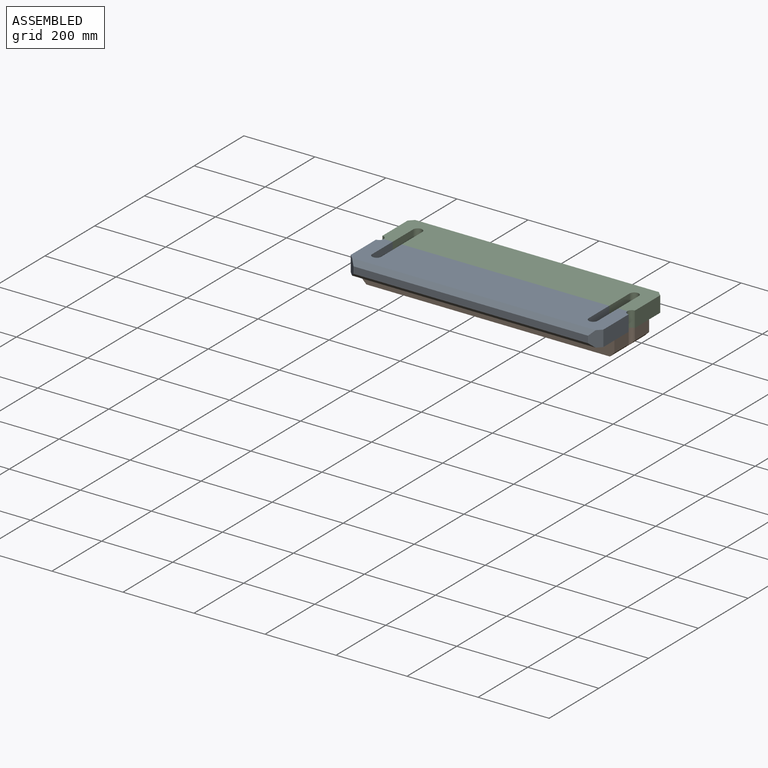
[diagram: assembled view]
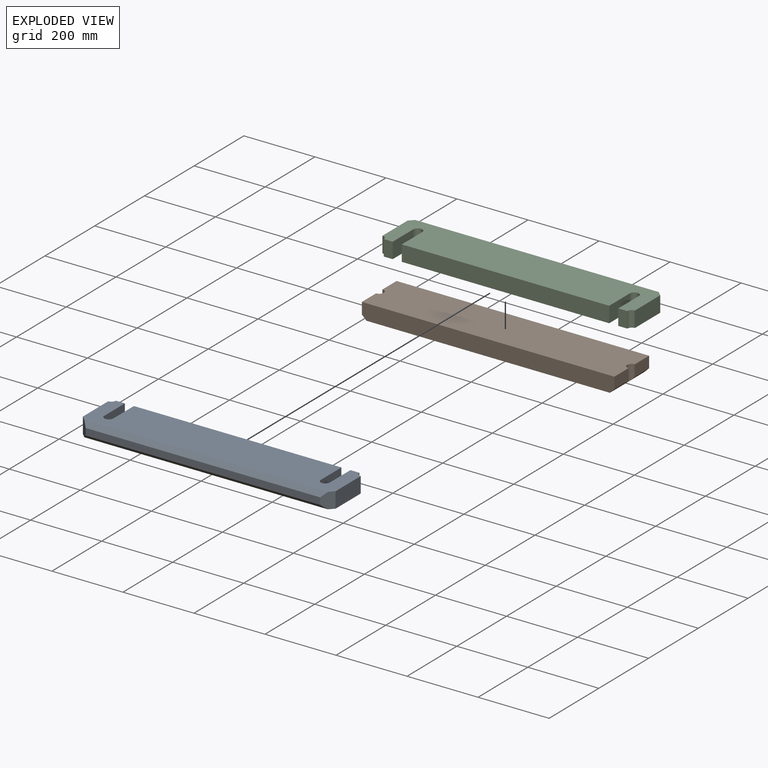
[diagram: exploded view]
GUIDED TOUR — MATED ASSEMBLY (Onshape document 4e13395bb980e09be525215f, AutoMate assembly 4e13395bb980e09be525215f_2cf490e79bdf5e7aecb7dca5_37e0e75ca202d9d71de66ae4_default)

This assembly has 3 components, labeled P0..P2 below (a component is one placed occurrence of a part; the same part can appear more than once), held together by 2 mates. A mate is a constraint between two components; its type names the relative motion it leaves free:
  FASTENED — locks the two components together rigidly (no relative motion).
Axis/direction vectors are unit vectors and 'through' points are millimeter coordinates, both in the assembly's world frame.

MATES
  1. FASTENED "Fastened 2": P1 <-> P0, direction (0.000, -1.000, 0.000) through (367.36, 115.08, -18.52) mm
  2. FASTENED "Fastened 1": P2 <-> P1, direction (0.000, -1.000, 0.000) through (367.36, 184.93, -18.52) mm

ASSEMBLY ORDER
  1. P2 — the base component [order verified]
  2. P1 [order verified]
  3. P0 [order verified]
Order-tag legend:
  [order verified] — this step's position reverses a verified removal order: the component was checked to insert without passing through the ones already placed.

Of the 3 components, 3 carry the full construction recipe — the FeatureScript program that regenerates the part's solid from scratch; the rest are supplied as boundary geometry only.
Each toured component is shown spotlighted twice — in the assembled view, then in the exploded view, where a leader line traces a displaced component back to its assembled socket (saturated green if recipe-attached, orange if geometry-only; every other component desaturated gray) — followed by its recipe or geometry summary and the mates that hold it.
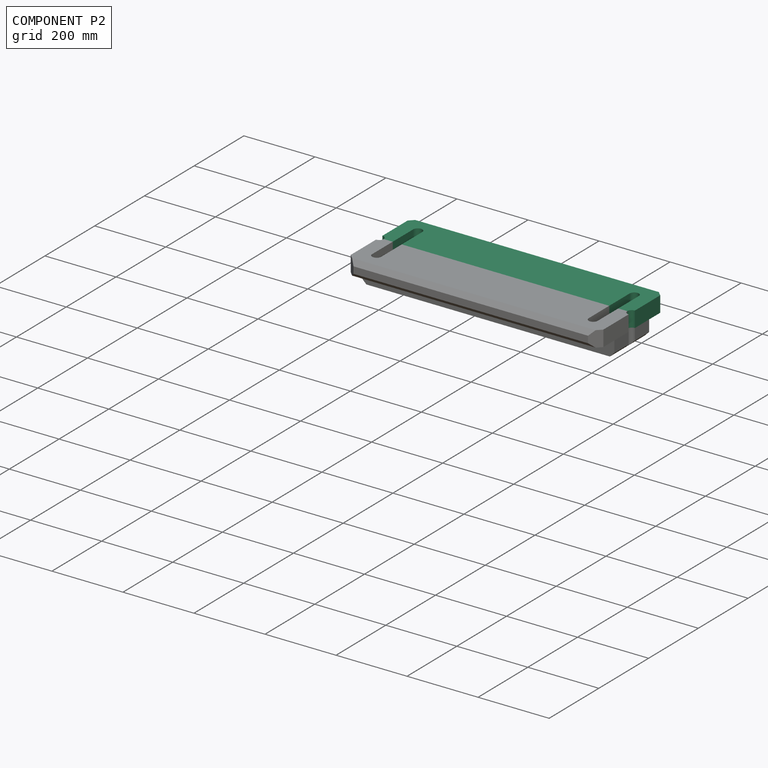
[diagram: component P2 — assembled]
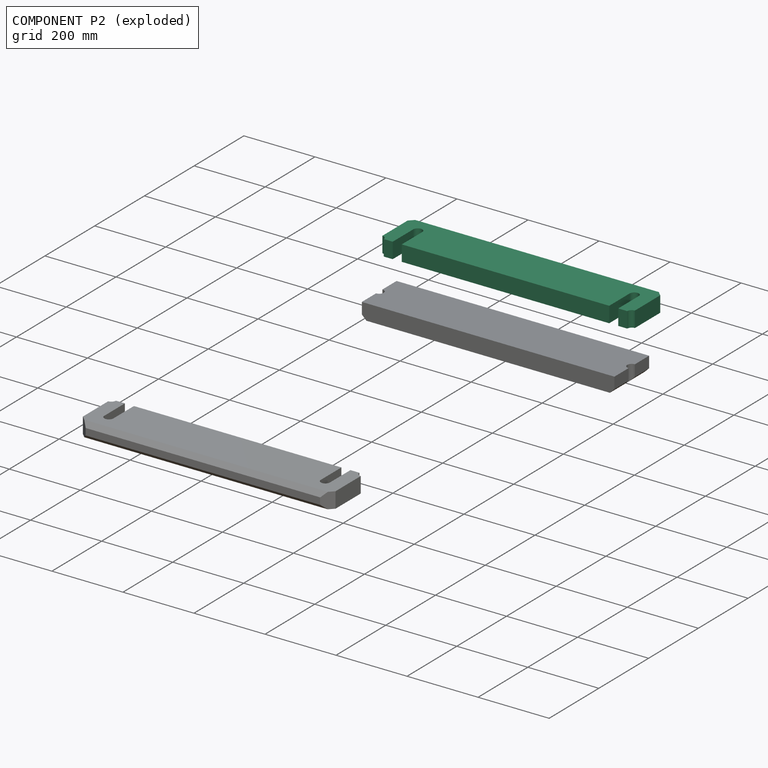
[diagram: component P2 — exploded]
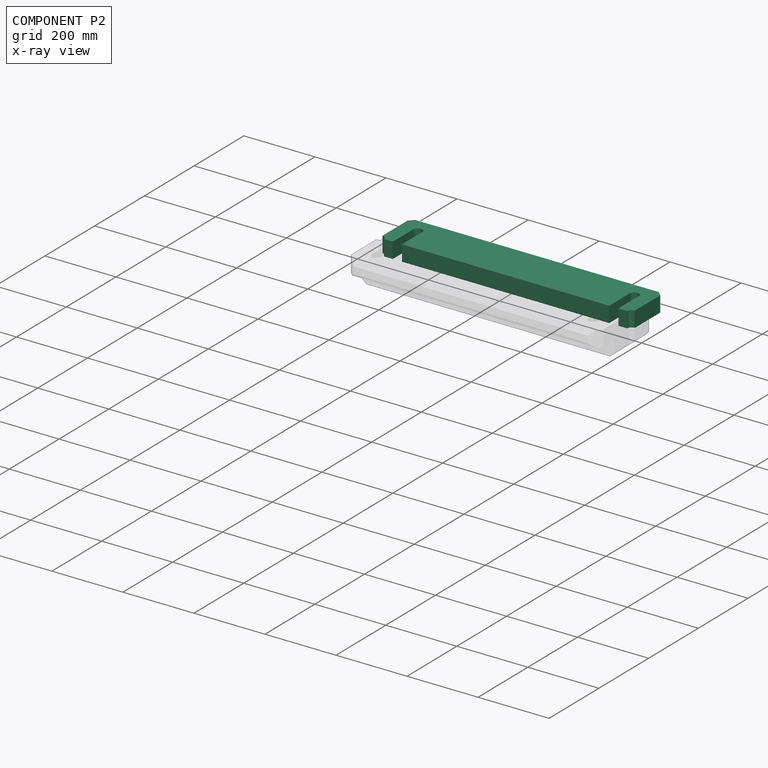
[diagram: component P2 — x-ray view]
COMPONENT P2 — same part as P0 (CADFS 00534415); its construction recipe is shown at P0.
Held by: FASTENED mate "Fastened 1" to P1.
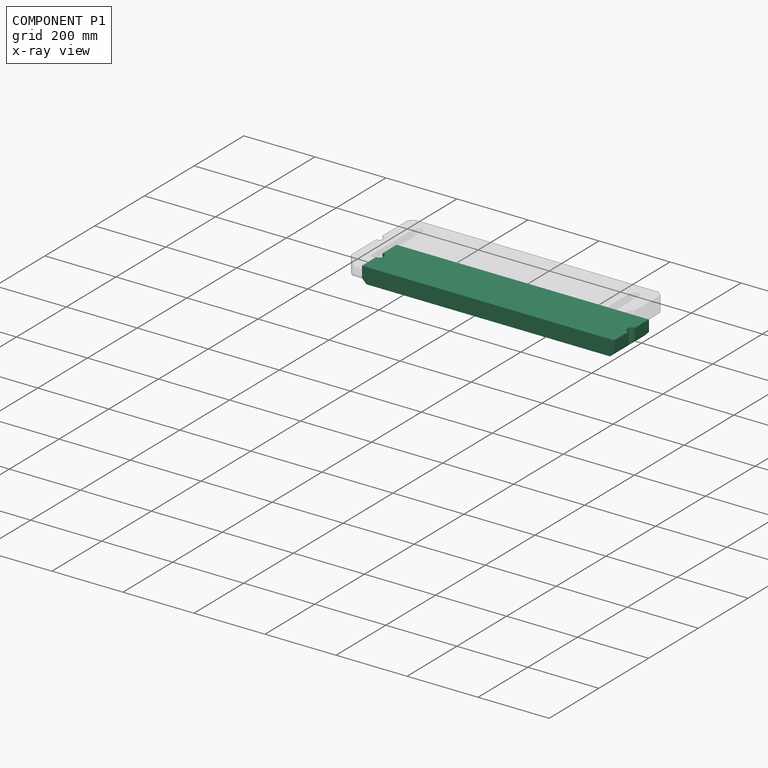
[diagram: component P1 — x-ray view]
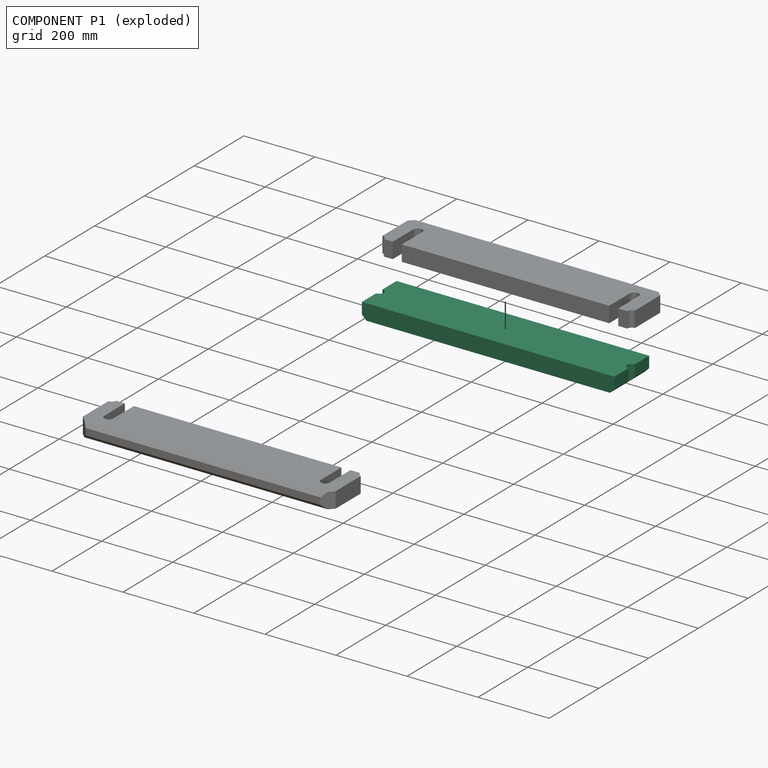
[diagram: component P1 — exploded]
COMPONENT P1 — recipe-attached (CADFS 00534414, mesh-verified: the recipe's output STEP matches this component's geometry to below the mesh-comparison resolution (tessellation chordal tolerance ~1.09 mm)).
Held by: FASTENED mate "Fastened 2" to P0; FASTENED mate "Fastened 1" to P2.
Construction recipe (FeatureScript — the CAD program that rebuilds this solid; sketch coordinates are in the units given by the * unit suffixes, e.g. mm):

FeatureScript 1511;
import(path : "onshape/std/geometry.fs", version : "1511.0");
import(path : "onshape/std/common.fs", version : "1511.0");
const mm = millimeter;
const VERTEX = EntityType.VERTEX;
const EDGE = EntityType.EDGE;
const FACE = EntityType.FACE;
const BODY = EntityType.BODY;
function v(x, y){return vector(x, y);}
function OD(order){return orderDisambiguation(order);}
function OSD(set){return originalSetDisambiguation(set);}
function TD(topology){return topologyDisambiguation(topology);}
function TDD(query){return trueDependencyDisambiguation(query);}
function sQuery(a, b, c) {return sketchEntityQuery(a, b, c);}

annotation { "Feature Type Name" : "Feature", "Feature Type Description" : "" }
export const myFeature = defineFeature(function(context is Context, id is Id, definition is map)
    precondition{}
    {
        {
            var Q0;
            Q0=qCreatedBy(makeId("Top.planeOp"),FACE);
            var sketch = newSketch(context, id + "F0", { "sketchPlane" : qUnion([Q0])});
            skLineSegment(sketch, "E0.bottom", {"start": v(0, 0) * mm, "end": v(711.2, 0) * mm});
            skLineSegment(sketch, "E0.top", {"start": v(0, 139.7) * mm, "end": v(711.2, 139.7) * mm});
            skLineSegment(sketch, "E0.left", {"start": v(0, 0) * mm, "end": v(0, 139.7) * mm});
            skLineSegment(sketch, "E0.right", {"start": v(711.2, 0) * mm, "end": v(711.2, 139.7) * mm});
            skSolve(sketch);
        }
        {
            var Q0;
            Q0 = qSketchRegion(id + "F0", true);
            extrude(context, id + "F1", {"entities" : qUnion([Q0]), "depth" : 44.45 * mm, "offsetDistance" : 25.4 * mm});
        }
        {
            var Q0;
            Q0=makeQuery(id+"F1.opExtrude","CAP_EDGE",EDGE,{"disambiguationData":[OSD([sQuery(id+"F0.wireOp",EDGE,"E0.left")])],"isStart":true});
            var Q1;
            Q1=makeQuery(id+"F1.opExtrude","CAP_EDGE",EDGE,{"disambiguationData":[OSD([sQuery(id+"F0.wireOp",EDGE,"E0.right")])],"isStart":true});
            chamfer(context, id + "F2", {"entities" : qUnion([Q0, Q1]), "width" : 12.7 * mm, "tangentPropagation" : true});
        }
        {
            var Q0;
            Q0=makeQuery(id+"F1.opExtrude","CAP_FACE",FACE,{"disambiguationData":[OSD([sQuery(id+"F0.wireOp",EDGE,"E0.bottom"),sQuery(id+"F0.wireOp",EDGE,"E0.top"),sQuery(id+"F0.wireOp",EDGE,"E0.left"),sQuery(id+"F0.wireOp",EDGE,"E0.right")])],"isStart":false});
            var sketch = newSketch(context, id + "F3", { "sketchPlane" : qUnion([Q0])});
            skLineSegment(sketch, "E1", {"start": v(355.6, 153.84) * mm, "end": v(355.6, -32.66) * mm, "construction": true});
            skPoint(sketch, "E1.startSnap0", {"position": v(355.6, 139.7) * mm});
            skLineSegment(sketch, "E2", {"start": v(-32.44, 69.85) * mm, "end": v(724.16, 69.85) * mm, "construction": true});
            skPoint(sketch, "E2.startSnap0", {"position": v(0, 69.85) * mm});
            skArc(sketch, "E3", {"start": v(0, 57.15) * mm, "mid": v(12.7, 69.85) * mm, "end": v(0, 82.55) * mm});
            skLineSegment(sketch, "E4", {"start": v(0, 82.55) * mm, "end": v(0, 57.15) * mm});
            skArc(sketch, "E5.MirrorCS", {"start": v(711.2, 57.15) * mm, "mid": v(698.5, 69.85) * mm, "end": v(711.2, 82.55) * mm});
            skLineSegment(sketch, "E6.MirrorCS", {"start": v(711.2, 82.55) * mm, "end": v(711.2, 57.15) * mm});
            skSolve(sketch);
        }
        {
            var Q0;
            Q0 = qSketchRegion(id + "F3", true);
            extrude(context, id + "F4", {"entities" : qUnion([Q0]), "operationType" : NewBodyOperationType.REMOVE, "oppositeDirection" : true, "depth" : 44.45 * mm, "offsetDistance" : 25.4 * mm});
        }
    });
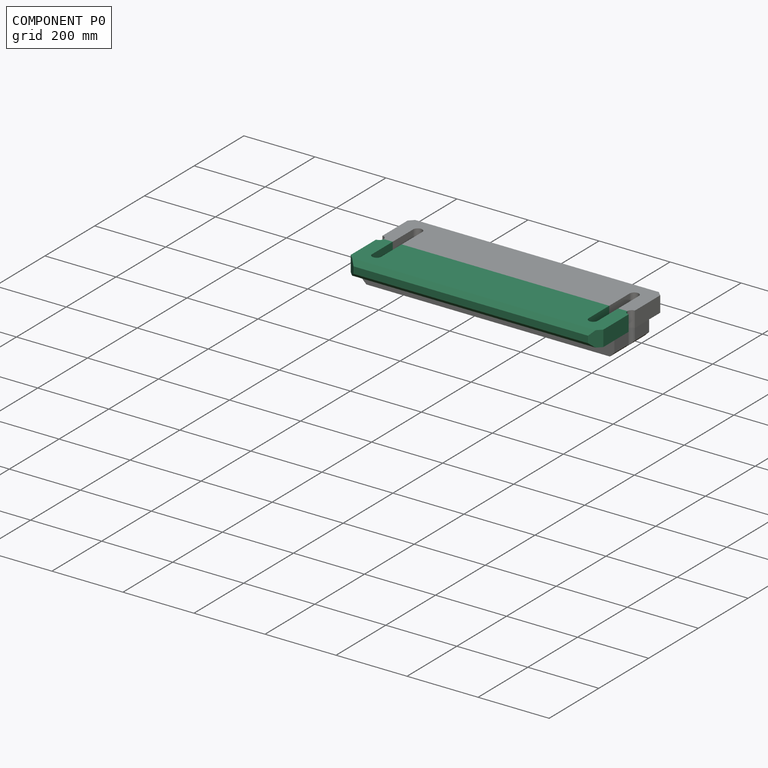
[diagram: component P0 — assembled]
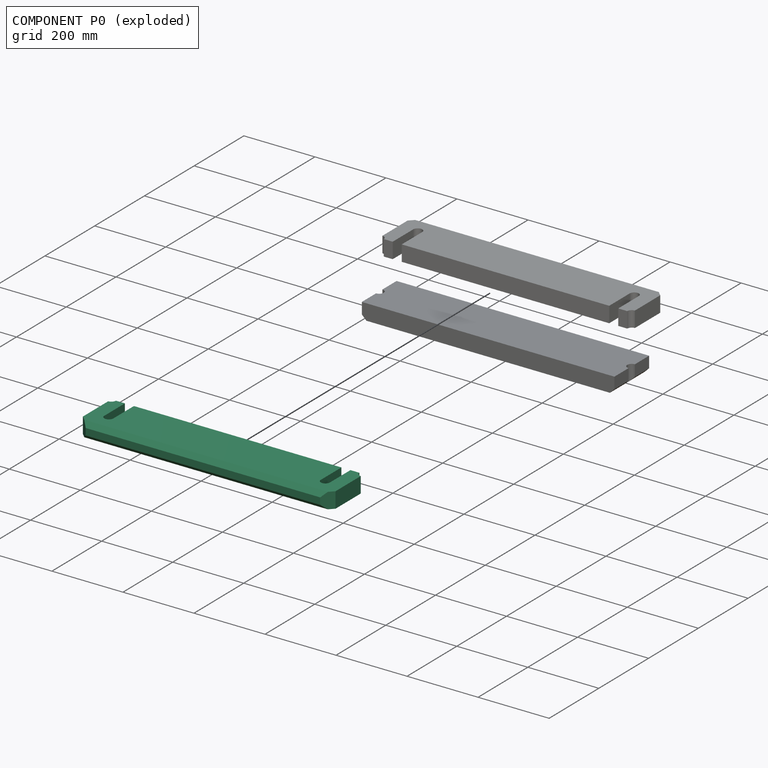
[diagram: component P0 — exploded]
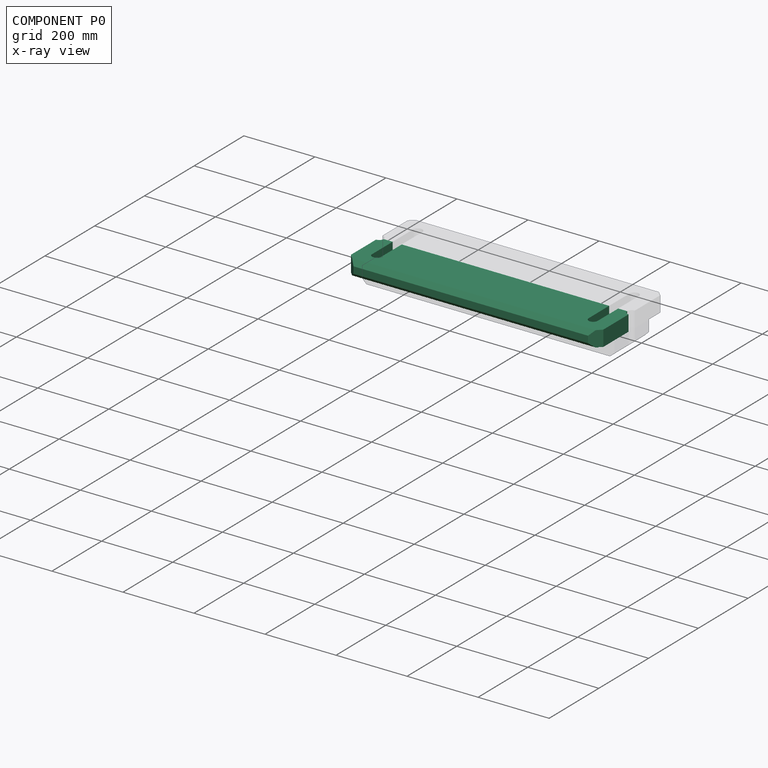
[diagram: component P0 — x-ray view]
COMPONENT P0 — recipe-attached (CADFS 00534415, mesh-verified: the recipe's output STEP matches this component's geometry to below the mesh-comparison resolution (tessellation chordal tolerance ~1.09 mm)).
Held by: FASTENED mate "Fastened 2" to P1.
Construction recipe (FeatureScript — the CAD program that rebuilds this solid; sketch coordinates are in the units given by the * unit suffixes, e.g. mm):

FeatureScript 1511;
import(path : "onshape/std/geometry.fs", version : "1511.0");
import(path : "onshape/std/common.fs", version : "1511.0");
const mm = millimeter;
const VERTEX = EntityType.VERTEX;
const EDGE = EntityType.EDGE;
const FACE = EntityType.FACE;
const BODY = EntityType.BODY;
function v(x, y){return vector(x, y);}
function OD(order){return orderDisambiguation(order);}
function OSD(set){return originalSetDisambiguation(set);}
function TD(topology){return topologyDisambiguation(topology);}
function TDD(query){return trueDependencyDisambiguation(query);}
function sQuery(a, b, c) {return sketchEntityQuery(a, b, c);}

annotation { "Feature Type Name" : "Feature", "Feature Type Description" : "" }
export const myFeature = defineFeature(function(context is Context, id is Id, definition is map)
    precondition{}
    {
        {
            var Q0;
            Q0=qCreatedBy(makeId("Top.planeOp"),FACE);
            var sketch = newSketch(context, id + "F0", { "sketchPlane" : qUnion([Q0])});
            skLineSegment(sketch, "E0", {"start": v(105.02, 139.7) * mm, "end": v(105.02, 0) * mm, "construction": true});
            skLineSegment(sketch, "E1", {"start": v(355.6, 157.39) * mm, "end": v(355.6, -27.96) * mm, "construction": true});
            skPoint(sketch, "E1.startSnap0", {"position": v(355.6, 139.7) * mm});
            skArc(sketch, "E2", {"start": v(63.5, 82.55) * mm, "mid": v(50.8, 95.25) * mm, "end": v(38.1, 82.55) * mm});
            skLineSegment(sketch, "E3", {"start": v(20.18, 82.55) * mm, "end": v(93.15, 82.55) * mm, "construction": true});
            skLineSegment(sketch, "E4", {"start": v(38.1, 82.55) * mm, "end": v(38.1, 0) * mm});
            skLineSegment(sketch, "E5", {"start": v(63.5, 82.55) * mm, "end": v(63.5, 0) * mm});
            skLineSegment(sketch, "E6", {"start": v(12.7, 0) * mm, "end": v(38.1, 0) * mm});
            skLineSegment(sketch, "E7", {"start": v(63.5, 0) * mm, "end": v(105.02, 0) * mm});
            skLineSegment(sketch, "E8", {"start": v(355.6, 0) * mm, "end": v(105.02, 0) * mm});
            skLineSegment(sketch, "E9", {"start": v(0, 114.3) * mm, "end": v(25.4, 139.7) * mm});
            skLineSegment(sketch, "E10", {"start": v(0, 12.7) * mm, "end": v(0, 114.3) * mm});
            skLineSegment(sketch, "E11", {"start": v(25.4, 139.7) * mm, "end": v(355.6, 139.7) * mm});
            skArc(sketch, "E12", {"start": v(12.7, 0) * mm, "mid": v(8.98, 8.98) * mm, "end": v(0, 12.7) * mm});
            skPoint(sketch, "E13.MirrorCS.start.orphan", {"position": v(355.6, 0) * mm});
            skLineSegment(sketch, "E14.MirrorCS", {"start": v(355.6, 0) * mm, "end": v(606.18, 0) * mm});
            skLineSegment(sketch, "E15.MirrorCS", {"start": v(685.8, 139.7) * mm, "end": v(355.6, 139.7) * mm});
            skLineSegment(sketch, "E16.MirrorCS", {"start": v(711.2, 114.3) * mm, "end": v(685.8, 139.7) * mm});
            skLineSegment(sketch, "E17.MirrorCS", {"start": v(711.2, 12.7) * mm, "end": v(711.2, 114.3) * mm});
            skArc(sketch, "E18.MirrorCS", {"start": v(698.5, 0) * mm, "mid": v(702.22, 8.98) * mm, "end": v(711.2, 12.7) * mm});
            skLineSegment(sketch, "E19.MirrorCS", {"start": v(698.5, 0) * mm, "end": v(673.1, 0) * mm});
            skLineSegment(sketch, "E20.MirrorCS", {"start": v(673.1, 82.55) * mm, "end": v(673.1, 0) * mm});
            skLineSegment(sketch, "E21.MirrorCS", {"start": v(647.7, 82.55) * mm, "end": v(647.7, 0) * mm});
            skLineSegment(sketch, "E22.MirrorCS", {"start": v(647.7, 0) * mm, "end": v(606.18, 0) * mm});
            skArc(sketch, "E23.MirrorCS", {"start": v(647.7, 82.55) * mm, "mid": v(660.4, 95.25) * mm, "end": v(673.1, 82.55) * mm});
            skSolve(sketch);
        }
        {
            var Q0;
            Q0 = qSketchRegion(id + "F0", true);
            extrude(context, id + "F1", {"entities" : qUnion([Q0]), "depth" : 44.45 * mm, "offsetDistance" : 25.4 * mm});
        }
        {
            var Q0;
            Q0=makeQuery(id+"F1.opExtrude","CAP_EDGE",EDGE,{"disambiguationData":[OSD([sQuery(id+"F0.wireOp",EDGE,"E11"),sQuery(id+"F0.wireOp",EDGE,"E15.MirrorCS")])],"isStart":false});
            var Q1;
            Q1=makeQuery(id+"F1.opExtrude","CAP_EDGE",EDGE,{"disambiguationData":[OSD([sQuery(id+"F0.wireOp",EDGE,"E11"),sQuery(id+"F0.wireOp",EDGE,"E15.MirrorCS")])],"isStart":true});
            chamfer(context, id + "F2", {"entities" : qUnion([Q0, Q1]), "width" : 12.7 * mm, "tangentPropagation" : true});
        }
    });
PROVENANCE & LICENSES
Assembly (occurrences, transforms, mates, per-part STEP geometry): AutoMate dataset, Zenodo record 7776208, CC0.
Construction recipes: CADFS (HuggingFace VladPyatov/CADFS, CC-BY-4.0, layered over the ABC dataset), FeatureScript reconstruction programs keyed by ABC model id.
Join: ABC meta listings map ABC model id -> Onshape documentId; within a shared document, parts are matched by geometric signature (bounding-box dims + volume at 0.1% relative tolerance, exact B-rep face/solid counts).
Verification: 3 of this assembly's 3 components carry a recipe attachment, and every attachment is mesh-verified: the CADFS STEP and the AutoMate member STEP were compared as meshes in their shared local frame (symmetric sampled-point-to-mesh distance); worst across the 3 attachments: below the mesh-comparison resolution (tessellation chordal tolerance ~1.09 mm) on a 726 mm part.
Renders: orthographic iso camera (az 35 / el 25); the floor grid conveys scale (grid pitch printed in each image; no ruler). In the exploded view each component is displaced by its stored offset vector: the offsets alone carry the explosion direction (mate normal/axis signs are not orientation cues and do not encode it), and separation distances are assigned per mate-chain, not proportionally to assembly-order depth.
